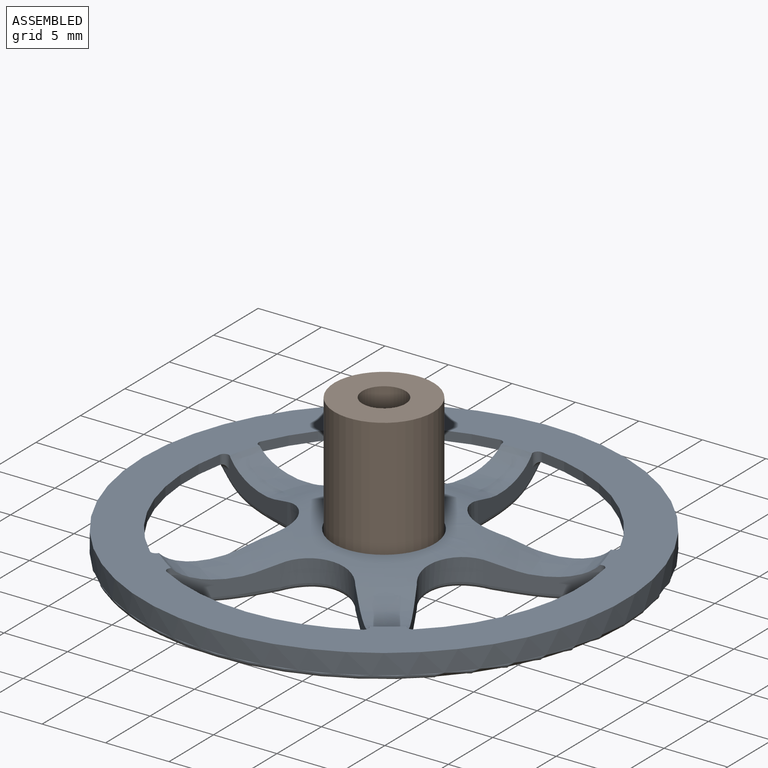
[diagram: assembled view]
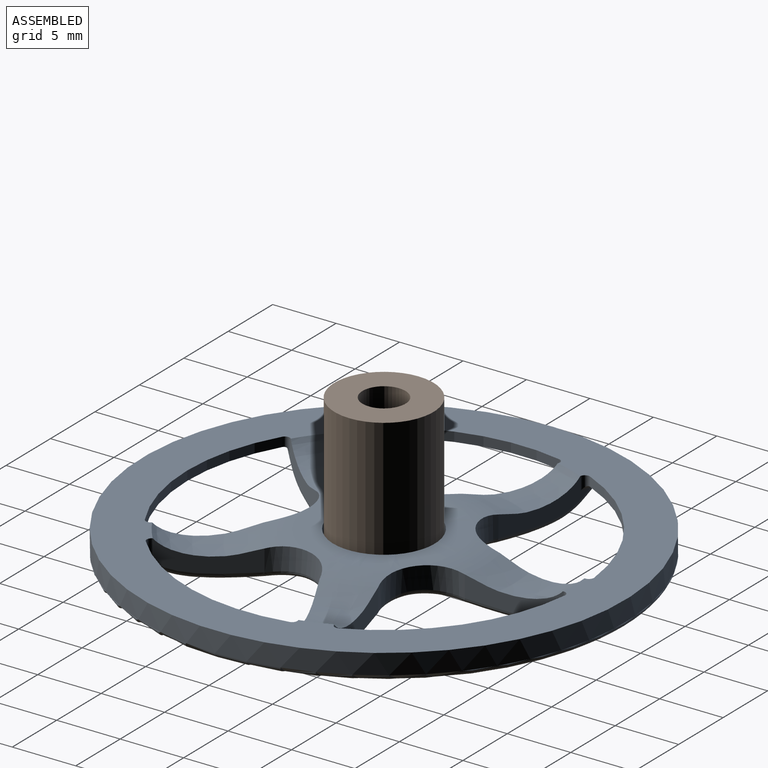
[diagram: assembled view, second angle]
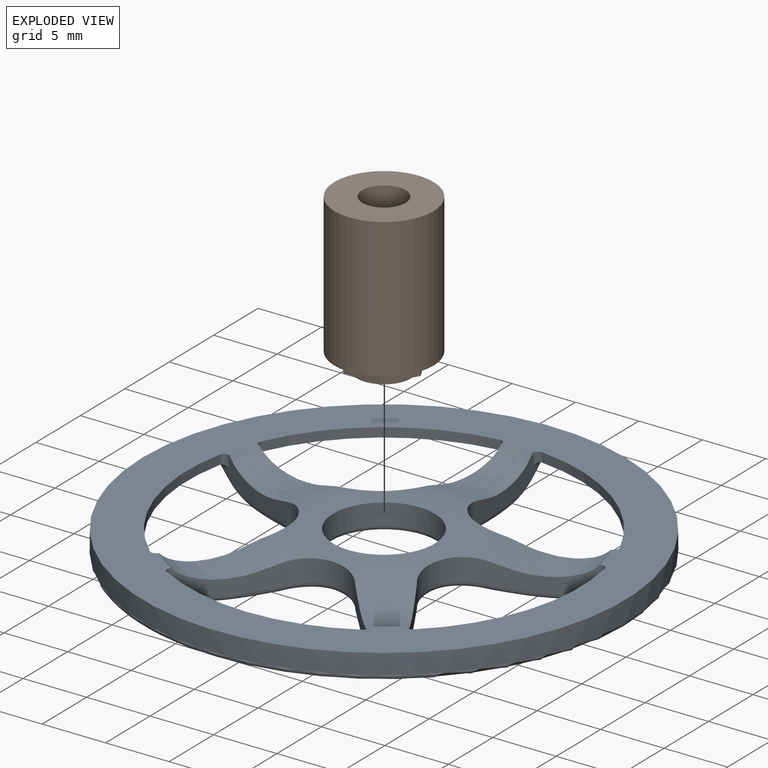
[diagram: exploded view]
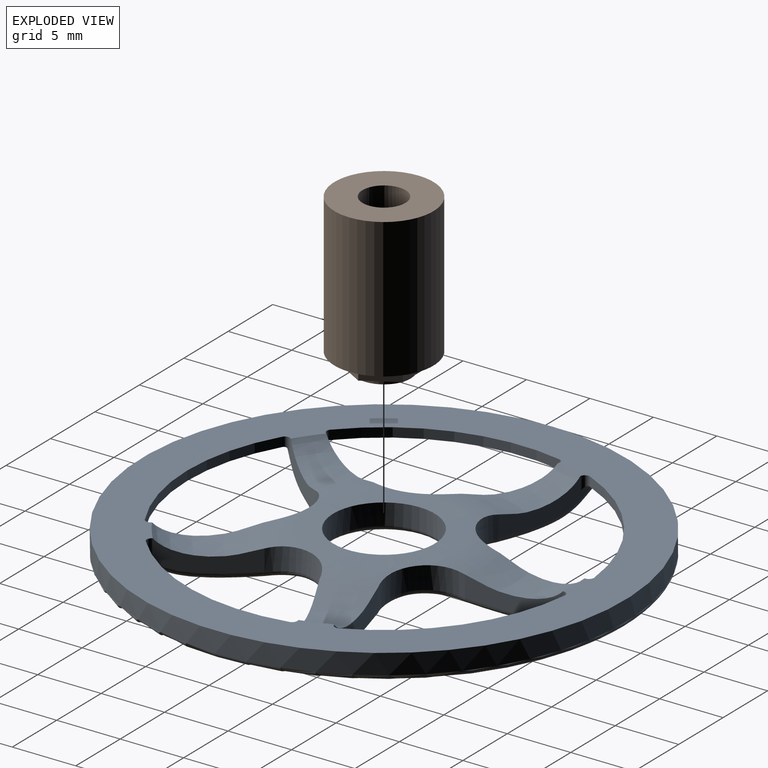
[diagram: exploded view, second angle]
ASSEMBLY  parts=2 mates=2
PART A: 101 faces, bbox 51.1x48.6x4 mm
  f0: revolved ~35.42x35.42mm, area 15.4mm2, adj f1,f94,f95,f96,f97,f98,f99,f100
  f1: torus R=4.4mm, axis (0,0,1), area 14.8mm2, adj f0,f2
  f2: cylinder r=4mm len=8mm, axis (0,0,-1), area 41.5mm2, adj f1,f3
  f3: revolved ~29.94x29.94mm, area 392.6mm2, adj f2,f4,f20,f36,f37,f38,f54,f55
  f4: plane 8.18x4.13mm, normal (0.41,-0.91,0), area 10.3mm2, adj f3,f5,f18,f19,f85,f93
  f5: bspline ~9.93x4.71mm, area 5.4mm2, adj f4,f6,f15,f16,f17,f93
  f6: revolved ~17.78x13.54mm, area 139.7mm2, adj f5,f7,f13,f14,f15,f17
  f7: torus R=16.8mm, axis (0,0,-1), area 0.4mm2, adj f6,f8,f12,f13,f16,f17
  f8: cone r=17mm half-angle=80deg, axis (0,0,-1), area 25.2mm2, adj f7,f9,f10,f11,f12,f16,f18,f19
  f9: bspline ~6.98x4.28mm, area 0.4mm2, adj f8,f10,f12,f92
  f10: cylinder r=0.4mm len=1.07mm, axis (0,0,1), area 0.6mm2, adj f8,f9,f11,f85,f92
  f11: cylinder r=15.5mm len=14.69mm, axis (0,0,1), area 11.9mm2, adj f8,f10,f18,f85
  f12: bspline ~1.49x0.68mm, area 0.4mm2, adj f7,f8,f9,f13,f14
  f13: bspline ~1.04x0.92mm, area 0.3mm2, adj f6,f7,f12,f14
  f14: bspline ~9.21x5.55mm, area 5.4mm2, adj f6,f12,f13,f15,f92,f93
  f15: bspline ~6.7x3.55mm, area 4.8mm2, adj f5,f6,f14,f93
  f16: bspline ~1.21x1.12mm, area 0.4mm2, adj f5,f7,f8,f17,f19
  f17: bspline ~1.02x0.91mm, area 0.3mm2, adj f5,f6,f7,f16
  f18: cylinder r=0.4mm len=1.07mm, axis (0,0,1), area 0.6mm2, adj f4,f8,f11,f19,f85
  f19: bspline ~14.54x6.79mm, area 0.4mm2, adj f4,f8,f16,f18
  f20: plane 8.71x3.23mm, normal (-0.21,0.98,0), area 10.3mm2, adj f3,f21,f34,f35,f36,f85
  f21: bspline ~10.27x2.56mm, area 5.4mm2, adj f20,f22,f31,f32,f33,f36
  f22: bspline ~5.72x4.69mm, area 4.8mm2, adj f21,f23,f31,f36
  f23: bspline ~10.68x2.1mm, area 5.4mm2, adj f22,f24,f30,f31,f36,f37
  f24: bspline ~1.38x0.83mm, area 0.4mm2, adj f23,f25,f26,f29,f30
  f25: torus R=16.8mm, axis (0,0,-1), area 0.4mm2, adj f24,f26,f30,f31,f32,f33
  f26: cone r=17mm half-angle=80deg, axis (0,0,-1), area 25.2mm2, adj f24,f25,f27,f28,f29,f33,f34,f35
  f27: cylinder r=15.5mm len=12.49mm, axis (0,0,1), area 11.9mm2, adj f26,f28,f35,f85
  f28: cylinder r=0.4mm len=1.07mm, axis (0,0,1), area 0.6mm2, adj f26,f27,f29,f37,f85
  f29: bspline ~15.7x3.13mm, area 0.4mm2, adj f24,f26,f28,f37
  f30: bspline ~1.14x0.91mm, area 0.3mm2, adj f23,f24,f25,f31
  f31: revolved ~15.63x15.01mm, area 139.7mm2, adj f21,f22,f23,f25,f30,f32
  f32: bspline ~1.15x0.91mm, area 0.3mm2, adj f21,f25,f31,f33
  f33: bspline ~1.47x0.54mm, area 0.4mm2, adj f21,f25,f26,f32,f34
  f34: bspline ~15.43x3.65mm, area 0.4mm2, adj f20,f26,f33,f35
  f35: cylinder r=0.4mm len=1.07mm, axis (0,0,1), area 0.6mm2, adj f20,f26,f27,f34,f85
  f36: cylinder r=3.6mm len=4.77mm, axis (0,0,-1), area 12.2mm2, adj f3,f20,f21,f22,f23,f37
  f37: plane 8.83x3.23mm, normal (0.99,0.11,0), area 10.3mm2, adj f3,f23,f28,f29,f36,f85
  f38: plane 8.83x3.23mm, normal (-0.99,0.11,0), area 10.3mm2, adj f3,f39,f52,f53,f54,f85
  f39: bspline ~10.38x1.93mm, area 5.4mm2, adj f38,f40,f49,f50,f51,f54
  f40: bspline ~5.86x4.53mm, area 4.8mm2, adj f39,f41,f49,f54
  f41: bspline ~10.55x2.62mm, area 5.4mm2, adj f40,f42,f48,f49,f54,f55
  f42: bspline ~1.47x0.54mm, area 0.4mm2, adj f41,f43,f44,f47,f48
  f43: torus R=16.8mm, axis (0,0,-1), area 0.4mm2, adj f42,f44,f48,f49,f50,f51
  f44: cone r=17mm half-angle=80deg, axis (0,0,-1), area 25.2mm2, adj f42,f43,f45,f46,f47,f51,f52,f53
  f45: cylinder r=15.5mm len=12.49mm, axis (0,0,1), area 11.9mm2, adj f44,f46,f53,f85
  f46: cylinder r=0.4mm len=1.07mm, axis (0,0,1), area 0.6mm2, adj f44,f45,f47,f55,f85
  f47: bspline ~15.43x3.65mm, area 0.4mm2, adj f42,f44,f46,f55
  f48: bspline ~1.15x0.91mm, area 0.3mm2, adj f41,f42,f43,f49
  f49: revolved ~15.63x15.01mm, area 139.7mm2, adj f39,f40,f41,f43,f48,f50
  f50: bspline ~1.14x0.91mm, area 0.3mm2, adj f39,f43,f49,f51
  f51: bspline ~1.38x0.83mm, area 0.4mm2, adj f39,f43,f44,f50,f52
  f52: bspline ~15.7x3.13mm, area 0.4mm2, adj f38,f44,f51,f53
  f53: cylinder r=0.4mm len=1.07mm, axis (0,0,1), area 0.6mm2, adj f38,f44,f45,f52,f85
  f54: cylinder r=3.6mm len=4.77mm, axis (0,0,-1), area 12.2mm2, adj f3,f38,f39,f40,f41,f55
  f55: plane 8.7x3.23mm, normal (0.21,0.98,0), area 10.3mm2, adj f3,f41,f46,f47,f54,f85
  f56: plane 8.18x4.13mm, normal (-0.41,-0.91,0), area 10.3mm2, adj f3,f57,f64,f65,f85,f95
  f57: bspline ~14.54x6.79mm, area 0.4mm2, adj f56,f58,f63,f64
  f58: cone r=17mm half-angle=80deg, axis (0,0,-1), area 25.2mm2, adj f57,f59,f60,f61,f62,f63,f64,f98
  f59: cylinder r=15.5mm len=14.69mm, axis (0,0,1), area 11.9mm2, adj f58,f60,f64,f85
  f60: cylinder r=0.4mm len=1.07mm, axis (0,0,1), area 0.6mm2, adj f58,f59,f61,f66,f85
  f61: bspline ~6.98x4.28mm, area 0.4mm2, adj f58,f60,f62,f66
  f62: bspline ~1.49x0.68mm, area 0.4mm2, adj f58,f61,f98,f99,f100
  f63: bspline ~1.21x1.12mm, area 0.4mm2, adj f57,f58,f95,f96,f98
  f64: cylinder r=0.4mm len=1.07mm, axis (0,0,1), area 0.6mm2, adj f56,f57,f58,f59,f85
  f65: cylinder r=3.6mm len=5.61mm, axis (0,0,-1), area 12.2mm2, adj f3,f56,f66,f94,f95,f100
  f66: plane 7.81x4.85mm, normal (-0.87,0.5,0), area 10.3mm2, adj f3,f60,f61,f65,f85,f100
  f67: plane 6.81x6.23mm, normal (0.74,-0.67,0), area 10.3mm2, adj f3,f68,f81,f82,f83,f85
  f68: bspline ~8x7.26mm, area 5.4mm2, adj f67,f69,f78,f79,f80,f83
  f69: bspline ~7.09x2.48mm, area 4.8mm2, adj f68,f70,f78,f83
  f70: bspline ~8.22x7.46mm, area 5.4mm2, adj f69,f71,f77,f78,f83,f84
  f71: bspline ~1.37x0.94mm, area 0.4mm2, adj f70,f72,f73,f76,f77
  f72: torus R=16.8mm, axis (0,0,-1), area 0.4mm2, adj f71,f73,f77,f78,f79,f80
  f73: cone r=17mm half-angle=80deg, axis (0,0,-1), area 25.2mm2, adj f71,f72,f74,f75,f76,f80,f81,f82
  f74: cylinder r=15.5mm len=15.44mm, axis (0,0,1), area 11.9mm2, adj f73,f75,f82,f85
  f75: cylinder r=0.4mm len=1.07mm, axis (0,0,1), area 0.6mm2, adj f73,f74,f76,f84,f85
  f76: bspline ~11.96x10.82mm, area 0.4mm2, adj f71,f73,f75,f84
  f77: bspline ~0.97x0.91mm, area 0.3mm2, adj f70,f71,f72,f78
  f78: revolved ~18.7x12.4mm, area 139.7mm2, adj f68,f69,f70,f72,f77,f79
  f79: bspline ~0.97x0.91mm, area 0.3mm2, adj f68,f72,f78,f80
  f80: bspline ~1.37x0.94mm, area 0.4mm2, adj f68,f72,f73,f79,f81
  f81: bspline ~11.96x10.82mm, area 0.4mm2, adj f67,f73,f80,f82
  f82: cylinder r=0.4mm len=1.07mm, axis (0,0,1), area 0.6mm2, adj f67,f73,f74,f81,f85
  f83: cylinder r=3.6mm len=5.9mm, axis (0,0,-1), area 12.2mm2, adj f3,f67,f68,f69,f70,f84
  f84: plane 6.81x6.23mm, normal (-0.74,-0.67,0), area 10.3mm2, adj f3,f70,f75,f76,f83,f85
  f85: plane 38x38mm, normal (0,0,1), area 385.8mm2, adj f3,f4,f10,f11,f18,f20,f27,f28
  f86: cylinder r=19mm len=38mm, axis (0,0,-1), area 191mm2, adj f85,f87
  f87: torus R=18.6mm, axis (0,0,1), area 74.4mm2, adj f86,f88
  f88: plane 37.2x37.2mm, normal (0,0,-1), area 23.2mm2, adj f87,f89
  f89: torus R=18.4mm, axis (0,0,1), area 71.6mm2, adj f88,f90
  f90: cylinder r=18mm len=36mm, axis (0,0,-1), area 45.2mm2, adj f89,f91
  f91: plane 36x36mm, normal (0,0,-1), area 0.1mm2, adj f90,f97
  f92: plane 7.81x4.85mm, normal (0.87,0.5,0), area 10.3mm2, adj f3,f9,f10,f14,f85,f93
  f93: cylinder r=3.6mm len=5.61mm, axis (0,0,-1), area 12.2mm2, adj f3,f4,f5,f14,f15,f92
  f94: bspline ~6.79x3.41mm, area 4.8mm2, adj f0,f65,f95,f100
  f95: bspline ~9.66x4.59mm, area 5.4mm2, adj f0,f56,f63,f65,f94,f96
  f96: bspline ~1.02x0.91mm, area 0.3mm2, adj f0,f63,f95,f98
  f97: torus R=18mm, axis (0,0,-1), area 36.5mm2, adj f0,f91
  f98: torus R=16.8mm, axis (0,0,-1), area 0.4mm2, adj f0,f58,f62,f63,f96,f99
  f99: bspline ~1.04x0.92mm, area 0.3mm2, adj f0,f62,f98,f100
  f100: bspline ~9.47x5.69mm, area 5.4mm2, adj f0,f62,f65,f66,f94,f99
PART B: 13 faces, bbox 7.8x7.8x12.4 mm
  f0: cylinder r=3.9mm len=11mm, axis (0,0,-1), area 269.5mm2, adj f1,f2
  f1: plane 7.8x7.8mm, normal (0,0,1), area 25.9mm2, adj f0,f3,f4,f5,f6,f7,f8
  f2: plane 7.8x7.8mm, normal (0,0,-1), area 38.7mm2, adj f0,f10
  f3: plane 2.9x1mm, normal (0,-1,0), area 2.9mm2, adj f1,f4,f8,f9
  f4: plane 2.51x1.45mm, normal (0.87,-0.5,0), area 2.9mm2, adj f1,f3,f5,f9
  f5: plane 2.51x1.45mm, normal (0.87,0.5,0), area 2.9mm2, adj f1,f4,f6,f9
  f6: plane 2.9x1mm, normal (0,1,0), area 2.9mm2, adj f1,f5,f7,f9
  f7: plane 2.51x1.45mm, normal (-0.87,0.5,0), area 2.9mm2, adj f1,f6,f8,f9
  f8: plane 2.51x1.45mm, normal (-0.87,-0.5,0), area 2.9mm2, adj f1,f3,f7,f9
  f9: plane 5.8x5.02mm, normal (0,0,1), area 8mm2, adj f3,f4,f5,f6,f7,f8,f11
  f10: cylinder r=1.7mm len=12.4mm, axis (0,0,-1), area 132.4mm2, adj f2,f12
  f11: cylinder r=2.1mm len=4.2mm, axis (0,0,-1), area 5.3mm2, adj f9,f12
  f12: plane 4.2x4.2mm, normal (0,0,1), area 4.8mm2, adj f10,f11
PLACE A t=(5.73,-4.71,12.02)mm
PLACE B rot(axis=(1,0,0),180deg) t=(5.73,-4.71,23.37)mm
MATE fastened B.f0 <-> A.f1  axis (0,0,-1) through (5.73,-4.71,12.37)mm
MATE cylindrical A.f1 <-> B.f0  axis (0,0,-1) through (5.73,-4.71,14.02)mm
